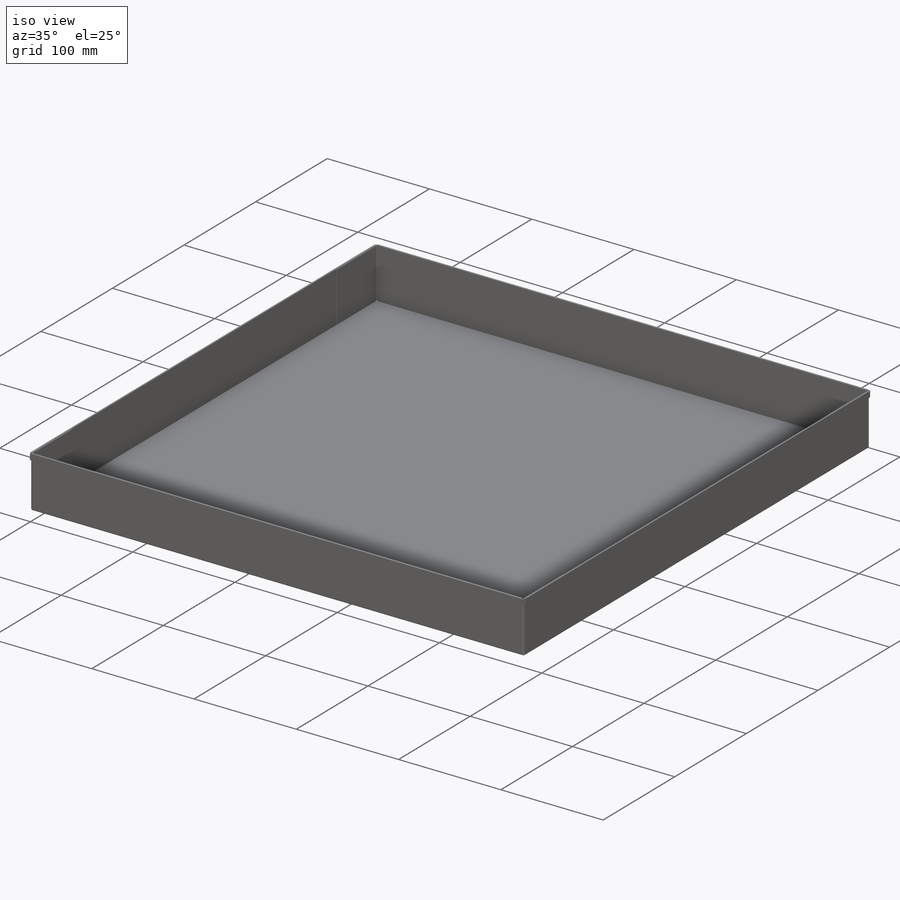
[diagram: iso view]
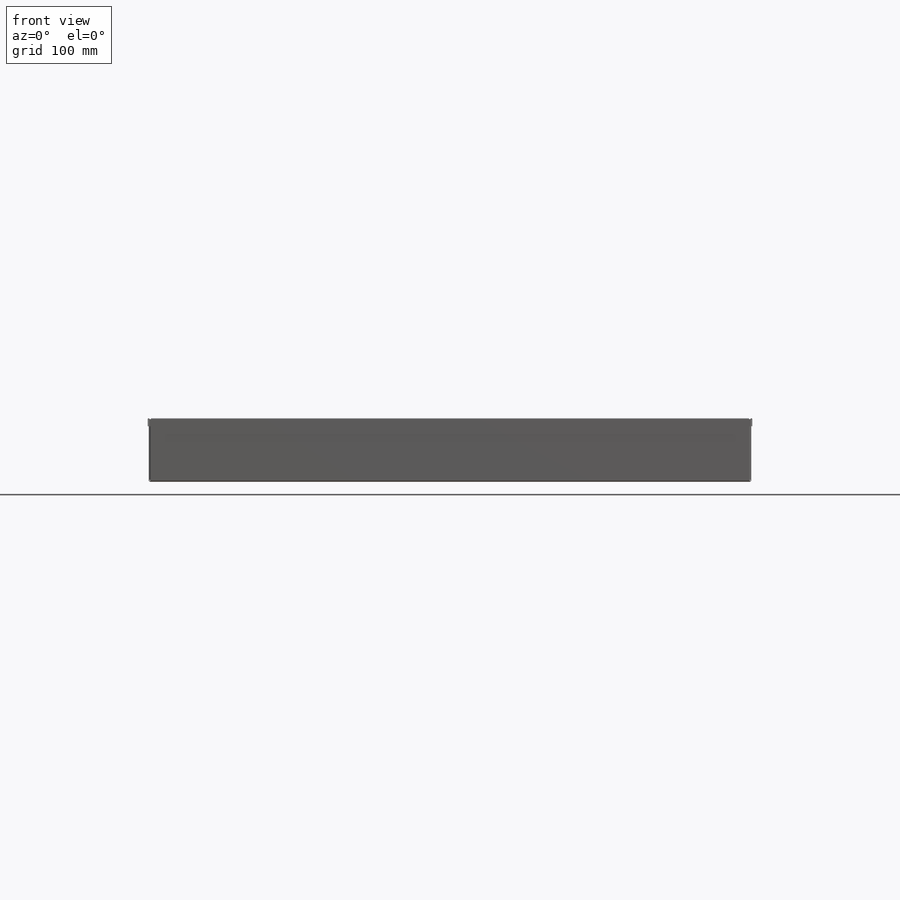
[diagram: front view]
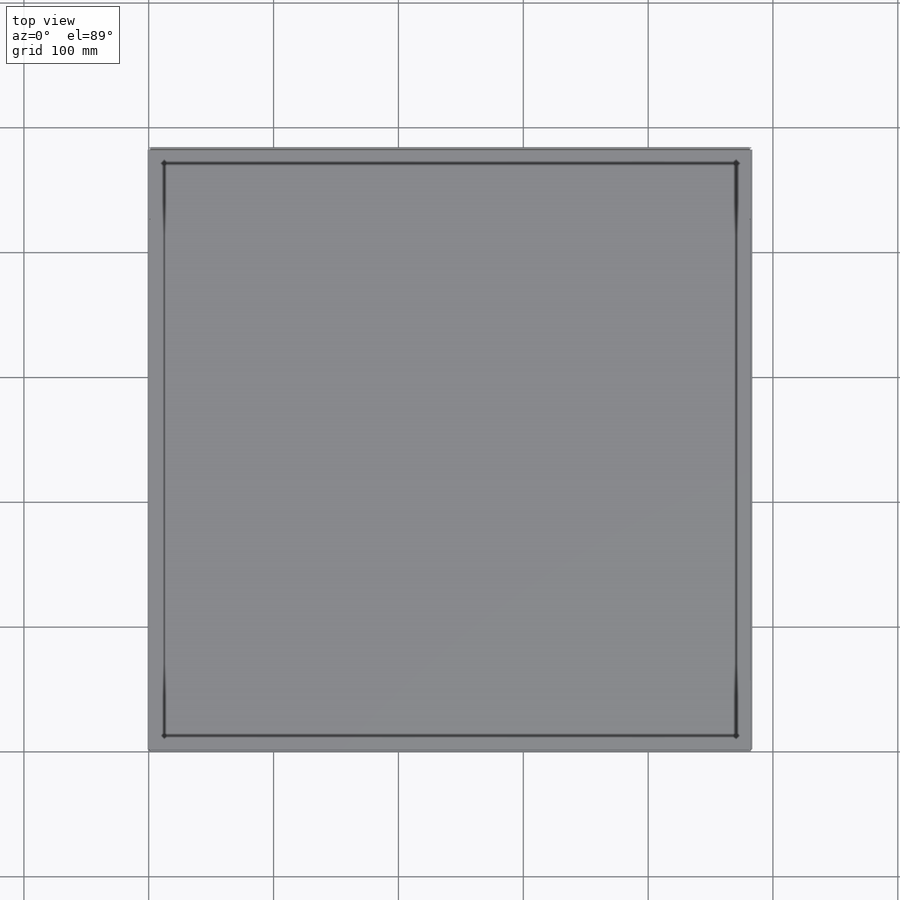
[diagram: top view]
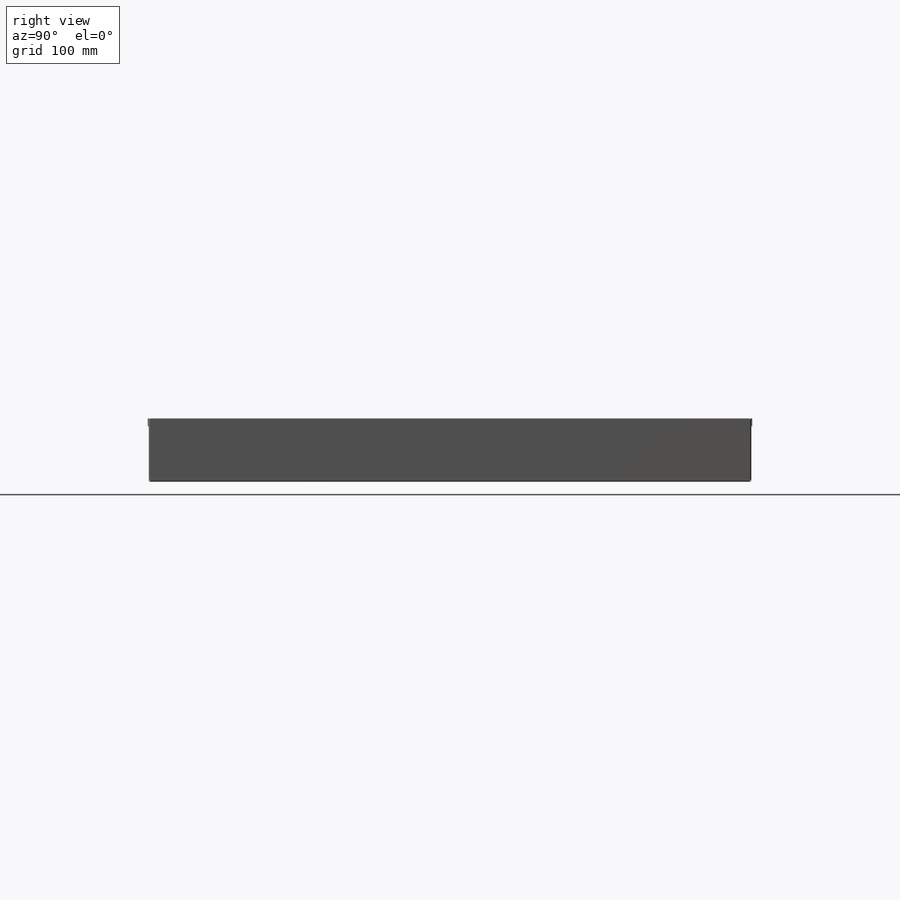
[diagram: right view]
SOLIDWORKS PART (.sldprt)
format: sldprt  version: not decoded by parser v0  size: 955,392 bytes
history: native  units: mm
features: sketch x17, sheet_metal_op x3, material x1, extrude x1 + 3 further entries (+13 scaffold rows collapsed; 3 parser-record rows omitted)
feature tree (41):
  scaffold x13  (default folders/planes/origin — collapsed)
  material  "Material <not specified>"
  sketch  "Sketch1"  dims[D1=482.6mm D2=482.6mm]
  extrude  "Boss-Extrude1"  Depth=50.8mm SharpBend6=0 SharpBend7=0 SharpBend8=0
  sketch  "Sketch48"
  sketch  "Sketch54"
  sketch  "Sketch56"
  sketch  "Sketch58"  dims[c1.HemBend8=0.0 c1.D1=0.0635mm c1.D4=180.0deg c1.D5=5.0 c1.D8=0.3175mm c1.D9=0.3175mm c1.HemBend13=0.0 c2.D1=0.0635mm c2.D4=180.0deg c2.D5=6.0 c2.D8=0.3175mm c2.D9=0.3175mm c2.HemBend14=0.0 c3.D1=0.0635mm c3.D4=180.0deg c3.D5=7.0 c3.D8=0.3175mm c3.D9=0.3175mm c3.HemBend15=0.0 c4.D1=0.0635mm c4.D4=180.0deg c4.D5=8.0 c4.D8=0.3175mm c4.D9=0.3175mm c5.D1=0.0635mm c5.D2=500.0mm c5.D3=0.0mm c5.D7=6.35mm c5.D8=0.127mm c5.D9=1.0mm]
  sketch  "Sketch24"
  sketch  "Sketch25"  dims[c1.EdgeBend1=0.0 c1.D1=0.508mm c1.D4=90.0deg c1.D5=5.0 c1.D8=0.254mm c1.D9=0.254mm c1.EdgeBend2=0.0 c2.D1=0.508mm c2.D4=90.0deg c2.D5=6.0 c2.D8=0.254mm c2.D9=0.254mm c3.D1=0.508mm c3.D2=500.0mm c3.D3=0.0mm c3.D6=0.6604mm c3.D7=~56.36768mm c3.D8=0.254mm]
  sketch  "Sketch31"
  sketch  "Sketch32"  dims[c1.EdgeBend3=0.0 c1.D1=0.508mm c1.D4=90.0deg c1.D5=7.0 c1.D8=0.254mm c1.D9=0.254mm c1.EdgeBend4=0.0 c2.D1=0.508mm c2.D4=90.0deg c2.D5=8.0 c2.D8=0.254mm c2.D9=0.254mm c3.D1=0.508mm c3.D2=500.0mm c3.D3=0.0mm c3.D6=0.6604mm c3.D7=~56.36768mm c3.D8=0.254mm]
  sketch  "Bend-Lines3"
  sketch  "Bounding-Box3"
  sheet_metal_op  "Sheet-Metal3"
  "Flat-Pattern3"
  sketch  "Bend-Lines4"
  sketch  "Bounding-Box4"
  parser-record x3  (decoder bookkeeping rows leaked as tree rows — omitted from the tree; the rows remain in map.json)
  sheet_metal_op  "Sheet-Metal4"
  "Flat-Pattern3"
  sketch  "Bend-Lines4"
  sketch  "Bounding-Box4"
  sheet_metal_op  "Sheet-Metal5"
  "Flat-Pattern3"
  sketch  "Bend-Lines4"
  sketch  "Bounding-Box4"
decode coverage: 5 of 21 modeling features carry decoded parameters; 3 rows unclassified (native names shown)
note: ~ marks probable driven/reference dimensions
note: suppression state not decoded; provenance and decode notes live in map.json
